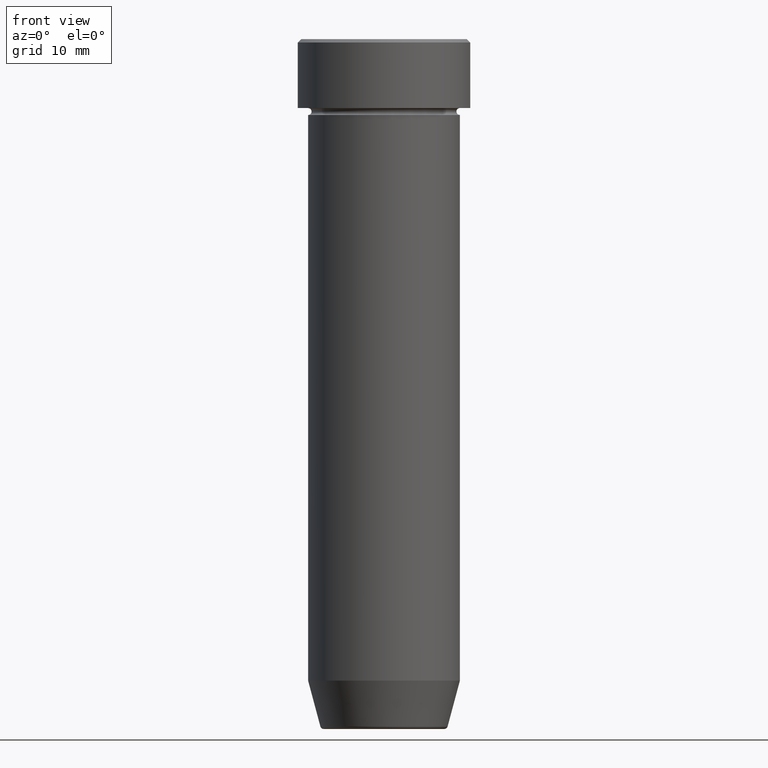
[diagram: clean part render]
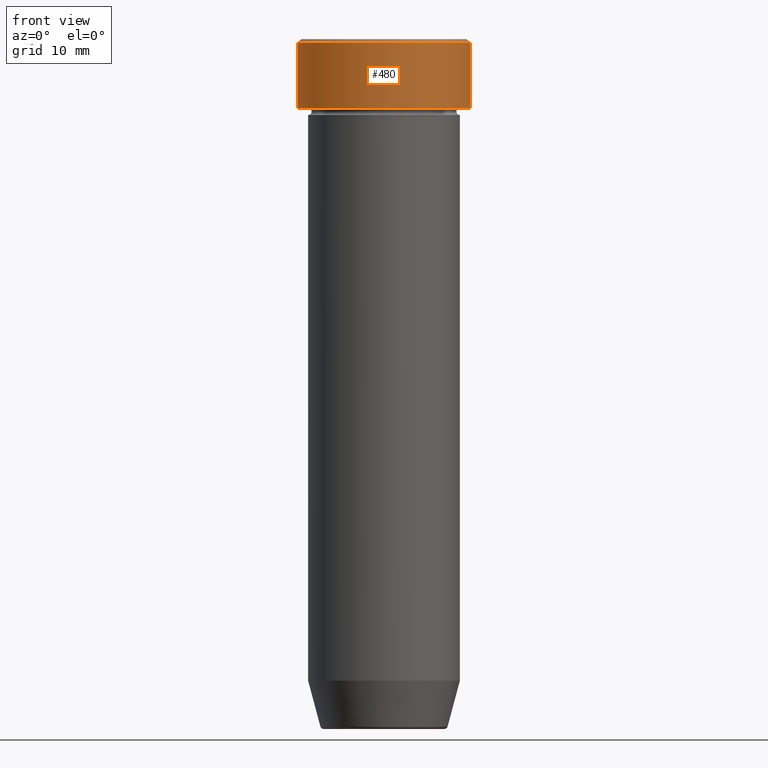
[diagram: same view with one face highlighted and labeled with its STEP entity id]
A machine part, front view. The second image highlights one B-rep face of the part: STEP entity #480.
In plain terms, the highlighted cylindrical surface (partial cylindrical patch) has radius 12.5 mm, axis along (-0, -0, 1).
Its self-contained STEP definition (entity closure, byte-faithful):
#46 = EDGE_LOOP ( 'NONE', ( #501, #450, #194, #444 ) ) ;
#72 = DIRECTION ( 'NONE',  ( 1.000000000000000000, 0.000000000000000000, 0.000000000000000000 ) ) ;
#79 = DIRECTION ( 'NONE',  ( -0.000000000000000000, -0.000000000000000000, 1.000000000000000000 ) ) ;
#80 = VERTEX_POINT ( 'NONE', #122 ) ;
#99 = FACE_OUTER_BOUND ( 'NONE', #46, .T. ) ;
#104 = EDGE_CURVE ( 'NONE', #255, #80, #188, .T. ) ;
#122 = CARTESIAN_POINT ( 'NONE',  ( 12.50000000000000000, 0.000000000000000000, -10.00000000000000000 ) ) ;
#129 = LINE ( 'NONE', #412, #371 ) ;
#188 = CIRCLE ( 'NONE', #531, 12.50000000000000000 ) ;
#193 = DIRECTION ( 'NONE',  ( -0.000000000000000000, -0.000000000000000000, 1.000000000000000000 ) ) ;
#194 = ORIENTED_EDGE ( 'NONE', *, *, #224, .T. ) ;
#196 = DIRECTION ( 'NONE',  ( 1.000000000000000000, 0.000000000000000000, 0.000000000000000000 ) ) ;
#200 = CARTESIAN_POINT ( 'NONE',  ( 0.000000000000000000, 0.000000000000000000, 0.000000000000000000 ) ) ;
#211 = VERTEX_POINT ( 'NONE', #443 ) ;
#219 = CARTESIAN_POINT ( 'NONE',  ( 0.000000000000000000, 0.000000000000000000, -10.00000000000000000 ) ) ;
#224 = EDGE_CURVE ( 'NONE', #80, #408, #358, .T. ) ;
#234 = CARTESIAN_POINT ( 'NONE',  ( 0.000000000000000000, 0.000000000000000000, -0.4999999999999988343 ) ) ;
#255 = VERTEX_POINT ( 'NONE', #317 ) ;
#266 = AXIS2_PLACEMENT_3D ( 'NONE', #200, #193, #196 ) ;
#283 = DIRECTION ( 'NONE',  ( 0.000000000000000000, 0.000000000000000000, -1.000000000000000000 ) ) ;
#296 = CARTESIAN_POINT ( 'NONE',  ( 12.50000000000000000, 0.000000000000000000, -0.4999999999999988343 ) ) ;
#317 = CARTESIAN_POINT ( 'NONE',  ( -12.50000000000000000, 1.530808498934191521E-15, -10.00000000000000000 ) ) ;
#322 = EDGE_CURVE ( 'NONE', #408, #211, #588, .T. ) ;
#345 = CYLINDRICAL_SURFACE ( 'NONE', #266, 12.50000000000000000 ) ;
#358 = LINE ( 'NONE', #399, #458 ) ;
#362 = EDGE_CURVE ( 'NONE', #255, #211, #129, .T. ) ;
#363 = AXIS2_PLACEMENT_3D ( 'NONE', #234, #283, #415 ) ;
#371 = VECTOR ( 'NONE', #597, 1000.000000000000000 ) ;
#399 = CARTESIAN_POINT ( 'NONE',  ( 12.50000000000000000, 0.000000000000000000, 0.000000000000000000 ) ) ;
#408 = VERTEX_POINT ( 'NONE', #296 ) ;
#412 = CARTESIAN_POINT ( 'NONE',  ( -12.50000000000000000, 1.530808498934191521E-15, 0.000000000000000000 ) ) ;
#415 = DIRECTION ( 'NONE',  ( 1.000000000000000000, 0.000000000000000000, 0.000000000000000000 ) ) ;
#443 = CARTESIAN_POINT ( 'NONE',  ( -12.50000000000000000, 1.530808498934191521E-15, -0.4999999999999988343 ) ) ;
#444 = ORIENTED_EDGE ( 'NONE', *, *, #322, .T. ) ;
#450 = ORIENTED_EDGE ( 'NONE', *, *, #104, .T. ) ;
#458 = VECTOR ( 'NONE', #577, 1000.000000000000000 ) ;
#480 = ADVANCED_FACE ( 'NONE', ( #99 ), #345, .T. ) ;
#501 = ORIENTED_EDGE ( 'NONE', *, *, #362, .F. ) ;
#531 = AXIS2_PLACEMENT_3D ( 'NONE', #219, #79, #72 ) ;
#577 = DIRECTION ( 'NONE',  ( -0.000000000000000000, -0.000000000000000000, 1.000000000000000000 ) ) ;
#588 = CIRCLE ( 'NONE', #363, 12.50000000000000000 ) ;
#597 = DIRECTION ( 'NONE',  ( -0.000000000000000000, -0.000000000000000000, 1.000000000000000000 ) ) ;